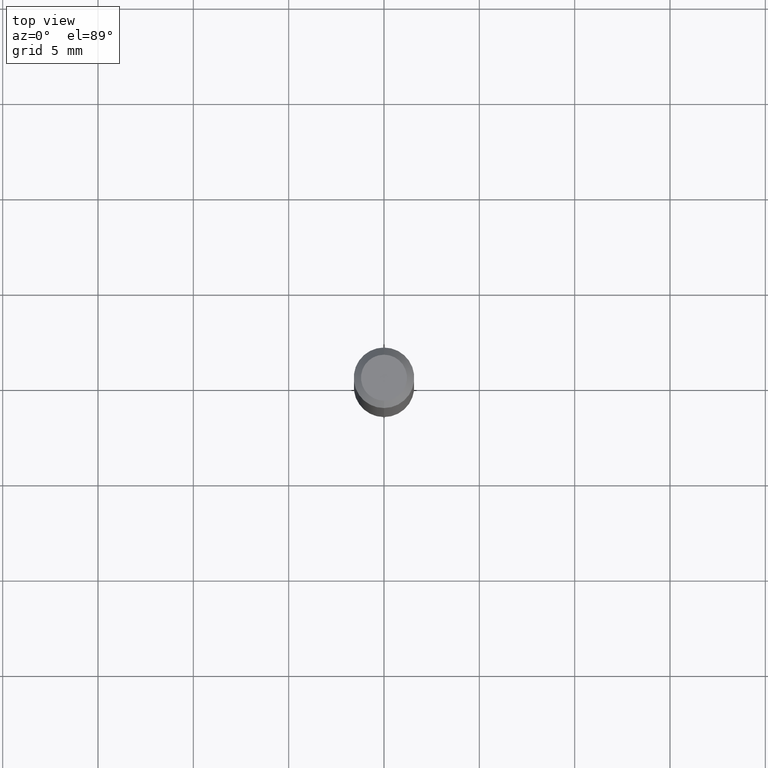
[diagram: clean part render]
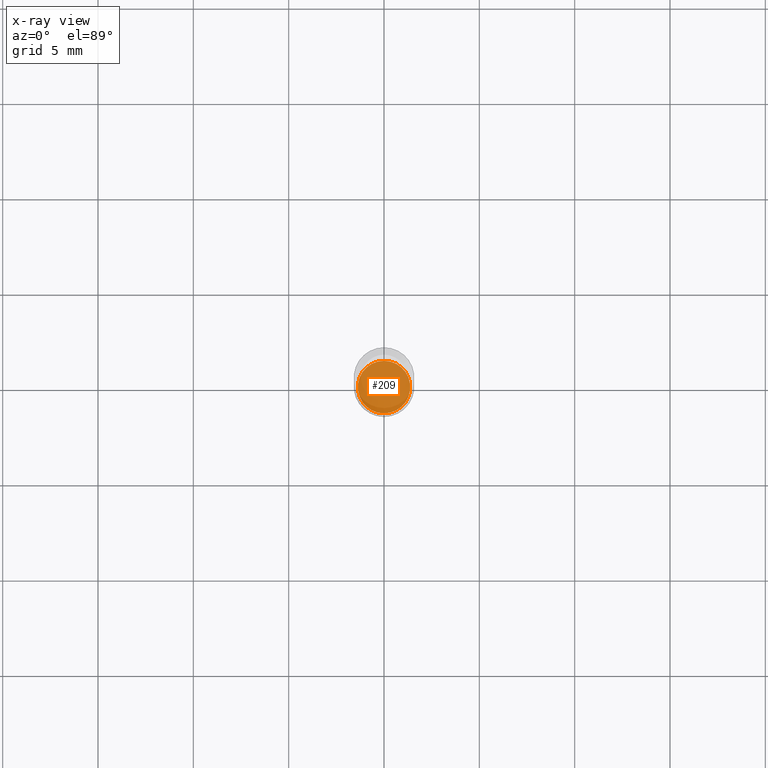
[diagram: x-ray — body ghosted, one internal face saturated and labeled with its STEP entity id]
A machine part, top view, then the same camera in x-ray: the body is ghosted and one INTERNAL B-rep face — a face not visible from any outside direction — is saturated and labeled: STEP entity #209.
In plain terms, the highlighted planar face has unit normal (-0, 0, 1).
Its self-contained STEP definition (entity closure, byte-faithful):
#11 = EDGE_LOOP ( 'NONE', ( #234, #183 ) ) ;
#126 = AXIS2_PLACEMENT_3D ( 'NONE', #466, #322, #202 ) ;
#136 = VERTEX_POINT ( 'NONE', #269 ) ;
#138 = EDGE_CURVE ( 'NONE', #394, #136, #254, .T. ) ;
#143 = DIRECTION ( 'NONE',  ( -6.982962677686266711E-15, -1.000000000000000000, 2.520154975705040126E-15 ) ) ;
#183 = ORIENTED_EDGE ( 'NONE', *, *, #360, .F. ) ;
#202 = DIRECTION ( 'NONE',  ( -6.982962677686265922E-15, -1.000000000000000000, 3.491472756912977253E-15 ) ) ;
#209 = ADVANCED_FACE ( 'NONE', ( #242 ), #470, .F. ) ;
#214 = DIRECTION ( 'NONE',  ( -6.982962677686266711E-15, -1.000000000000000000, 2.520154975705040126E-15 ) ) ;
#222 = AXIS2_PLACEMENT_3D ( 'NONE', #490, #381, #143 ) ;
#234 = ORIENTED_EDGE ( 'NONE', *, *, #138, .F. ) ;
#242 = FACE_OUTER_BOUND ( 'NONE', #11, .T. ) ;
#254 = CIRCLE ( 'NONE', #222, 0.05419999999999999818 ) ;
#256 = AXIS2_PLACEMENT_3D ( 'NONE', #258, #326, #214 ) ;
#258 = CARTESIAN_POINT ( 'NONE',  ( 2.751159148779311401E-29, -3.927906851527099952E-15, -1.125000000000000222 ) ) ;
#269 = CARTESIAN_POINT ( 'NONE',  ( 3.868905196214021993E-16, 0.05419999999999607077, -1.125000000000000222 ) ) ;
#322 = DIRECTION ( 'NONE',  ( -2.445474798914943001E-29, 3.491472756912977253E-15, 1.000000000000000000 ) ) ;
#326 = DIRECTION ( 'NONE',  ( -2.445474798914943281E-29, 3.491472756912977253E-15, 1.000000000000000000 ) ) ;
#360 = EDGE_CURVE ( 'NONE', #136, #394, #455, .T. ) ;
#370 = CARTESIAN_POINT ( 'NONE',  ( -3.784765771305680700E-16, -0.05420000000000392559, -1.125000000000000000 ) ) ;
#381 = DIRECTION ( 'NONE',  ( -2.445474798914943281E-29, 3.491472756912977253E-15, 1.000000000000000000 ) ) ;
#394 = VERTEX_POINT ( 'NONE', #370 ) ;
#455 = CIRCLE ( 'NONE', #256, 0.05419999999999999818 ) ;
#466 = CARTESIAN_POINT ( 'NONE',  ( 2.751159148779311401E-29, -3.927906851527099952E-15, -1.125000000000000222 ) ) ;
#470 = PLANE ( 'NONE',  #126 ) ;
#490 = CARTESIAN_POINT ( 'NONE',  ( 2.751159148779311401E-29, -3.927906851527099952E-15, -1.125000000000000222 ) ) ;